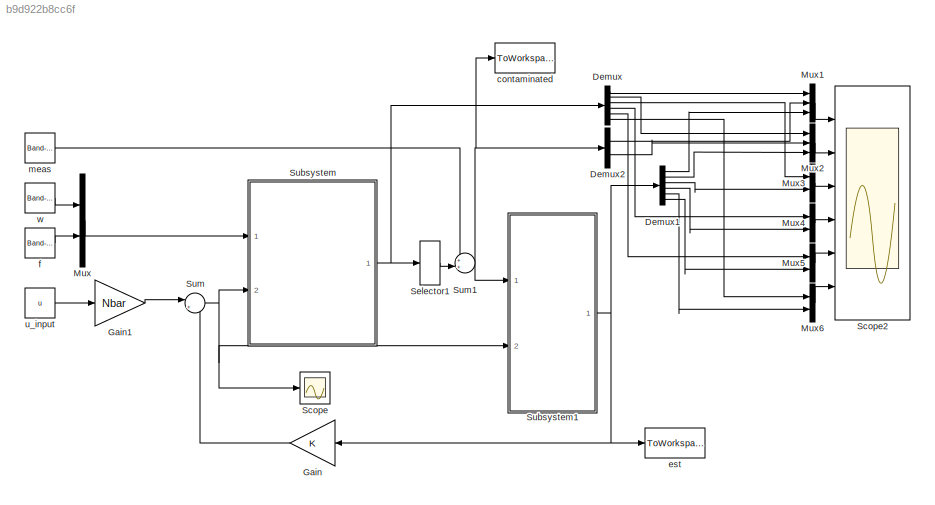
MODEL slx_b9d922b8cc6f
KIND model
CONFIG AbsTol = auto
CONFIG EnableMultiTasking = off
CONFIG FixedStep = Ts
CONFIG MaxStep = auto
CONFIG MinStep = auto
CONFIG RelTol = 1e-3
CONFIG SampleTimeConstraint = Unconstrained
CONFIG Solver = FixedStepAuto
CONFIG SolverName = FixedStepAuto
CONFIG StartTime = 0.0
CONFIG StopTime = duration
BLOCK [Demux] Demux
  DisplayOption = bar
  Outputs = 6
  Ports = [1, 6]
BLOCK [Demux] Demux1
  DisplayOption = bar
  Outputs = 6
  Ports = [1, 6]
BLOCK [Demux] Demux2
  DisplayOption = bar
  Outputs = 2
  Ports = [1, 2]
BLOCK [Gain] Gain
  Gain = K
  Multiplication = Matrix(K*u)
  OutDataTypeStr = Inherit: Inherit via internal rule
  ParamDataTypeStr = Inherit: Inherit via internal rule
  SaturateOnIntegerOverflow = off
BLOCK [Gain] Gain1
  Gain = Nbar
  Multiplication = Matrix(K*u)
  OutDataTypeStr = Inherit: Inherit via internal rule
  ParamDataTypeStr = Inherit: Inherit via internal rule
  SaturateOnIntegerOverflow = off
BLOCK [Mux] Mux
  DisplayOption = bar
  Inputs = 2
  Ports = [2, 1]
BLOCK [Mux] Mux1
  DisplayOption = bar
  Inputs = 3
  Ports = [3, 1]
BLOCK [Mux] Mux2
  DisplayOption = bar
  Inputs = 3
  Ports = [3, 1]
BLOCK [Mux] Mux3
  DisplayOption = bar
  Inputs = 2
  Ports = [2, 1]
BLOCK [Mux] Mux4
  DisplayOption = bar
  Inputs = 2
  Ports = [2, 1]
BLOCK [Mux] Mux5
  DisplayOption = bar
  Inputs = 2
  Ports = [2, 1]
BLOCK [Mux] Mux6
  DisplayOption = bar
  Inputs = 2
  Ports = [2, 1]
BLOCK [Scope] Scope
  NumInputPorts = 1
  Ports = [1]
  ScopeSpecificationString = Simulink.scopes.TimeScopeBlockCfg('CurrentConfiguration', extmgr.ConfigurationSet(extmgr.Configuration('Core','General UI',true),extmgr.Configuration('Core','Source UI',true),extmgr.Configuration('Sources','WiredSimulink',true),extmgr.Configuration('Visuals','Time Domain',true,'SerializedDisplays',{struct('MinYLimReal','-55.42938','MaxYLimReal','51.39931','YLabelReal','','MinYLimMag','0.00000','Ma...<+1329ch>
BLOCK [Scope] Scope2
  NumInputPorts = 6
  Ports = [6]
  ScopeSpecificationString = Simulink.scopes.TimeScopeBlockCfg('CurrentConfiguration', extmgr.ConfigurationSet(extmgr.Configuration('Core','General UI',true),extmgr.Configuration('Core','Source UI',true),extmgr.Configuration('Sources','WiredSimulink',true,'DataLoggingVariableName','ScopeData1'),extmgr.Configuration('Visuals','Time Domain',true,'SerializedDisplays',{struct('MinYLimReal','-4.19557','MaxYLimReal','20.83459','YLa...<+4951ch>
BLOCK [Selector] Selector1
  IndexOptions = Index vector (dialog)
  Indices = [1 2]
  InputPortWidth = 6
  OutputSizes = 1
  Ports = [1, 1]
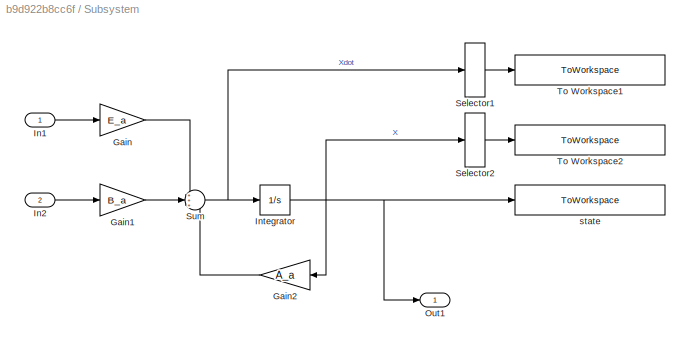
BLOCK [SubSystem] Subsystem
  Ports = [2, 1]
  RequestExecContextInheritance = off
  Variant = off
BLOCK [Gain] Subsystem/Gain
  Gain = E_a
  Multiplication = Matrix(K*u)
  OutDataTypeStr = Inherit: Inherit via internal rule
  ParamDataTypeStr = Inherit: Inherit via internal rule
  SaturateOnIntegerOverflow = off
BLOCK [Gain] Subsystem/Gain1
  Gain = B_a
  Multiplication = Matrix(K*u)
  OutDataTypeStr = Inherit: Inherit via internal rule
  ParamDataTypeStr = Inherit: Inherit via internal rule
  SaturateOnIntegerOverflow = off
BLOCK [Gain] Subsystem/Gain2
  Gain = A_a
  Multiplication = Matrix(K*u)
  OutDataTypeStr = Inherit: Inherit via internal rule
  ParamDataTypeStr = Inherit: Inherit via internal rule
  SaturateOnIntegerOverflow = off
BLOCK [Inport] Subsystem/In1
  IconDisplay = Port number
BLOCK [Inport] Subsystem/In2
  IconDisplay = Port number
  Port = 2
BLOCK [Integrator] Subsystem/Integrator
  InitialCondition = X_0
  Ports = [1, 1]
BLOCK [Outport] Subsystem/Out1
  IconDisplay = Port number
BLOCK [Selector] Subsystem/Selector1
  IndexOptions = Index vector (dialog)
  Indices = [3]
  InputPortWidth = 6
  OutputSizes = 1
  Ports = [1, 1]
BLOCK [Selector] Subsystem/Selector2
  IndexOptions = Index vector (dialog)
  Indices = [3]
  InputPortWidth = 6
  OutputSizes = 1
  Ports = [1, 1]
BLOCK [Sum] Subsystem/Sum
  IconShape = round
  InputSameDT = off
  Inputs = +++
  OutDataTypeStr = Inherit: Inherit via internal rule
  Ports = [3, 1]
  SaturateOnIntegerOverflow = off
BLOCK [ToWorkspace] Subsystem/To Workspace1
  FixptAsFi = on
  MaxDataPoints = inf
  Ports = [1]
  SampleTime = -1
  Save2DSignal = 3-D array (concatenate along third dimension)
  SaveFormat = Structure With Time
  VariableName = linear_acceleration
BLOCK [ToWorkspace] Subsystem/To Workspace2
  FixptAsFi = on
  MaxDataPoints = inf
  Ports = [1]
  SampleTime = -1
  Save2DSignal = 3-D array (concatenate along third dimension)
  SaveFormat = Structure With Time
  VariableName = linear_velocity
BLOCK [ToWorkspace] Subsystem/state
  MaxDataPoints = inf
  Ports = [1]
  SampleTime = Ts
  SaveFormat = Structure With Time
  VariableName = state_data
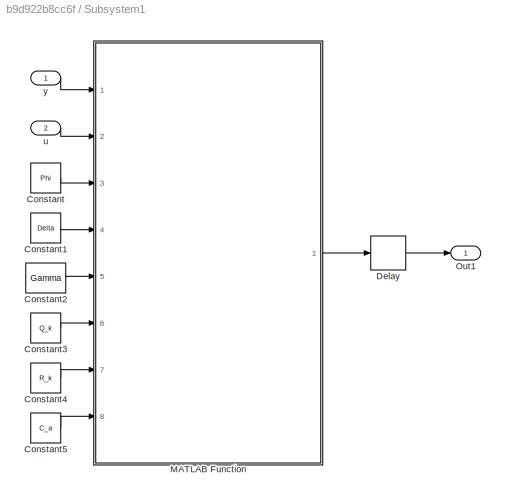
BLOCK [SubSystem] Subsystem1
  Ports = [2, 1]
  RequestExecContextInheritance = off
  Variant = off
BLOCK [Constant] Subsystem1/Constant
  Value = Phi
BLOCK [Constant] Subsystem1/Constant1
  Value = Delta
BLOCK [Constant] Subsystem1/Constant2
  Value = Gamma
BLOCK [Constant] Subsystem1/Constant3
  Value = Q_k
BLOCK [Constant] Subsystem1/Constant4
  Value = R_k
BLOCK [Constant] Subsystem1/Constant5
  Value = C_a
BLOCK [Delay] Subsystem1/Delay
  DelayLength = 1
  InitialCondition = 0
  InputPortMap = u0
  Ports = [1, 1]
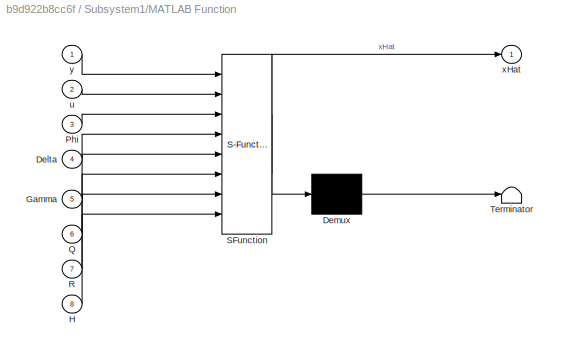
BLOCK [SubSystem] Subsystem1/MATLAB Function
  ErrorFcn = Stateflow.Translate.translate
  PermitHierarchicalResolution = ExplicitOnly
  Ports = [8, 1]
  RequestExecContextInheritance = off
  SFBlockType = MATLAB Function
  TreatAsAtomicUnit = on
  Variant = off
BLOCK [Demux] Subsystem1/MATLAB Function/ Demux 
  Outputs = 1
  Ports = [1, 1]
BLOCK [S-Function] Subsystem1/MATLAB Function/ SFunction 
  EnableBusSupport = on
  FunctionName = sf_sfun
  PortCounts = [8 2]
  Ports = [8, 2]
  SFcnIsStateOwnerBlock = off
  SFunctionDeploymentMode = off
  Tag = Stateflow S-Function pdl_linear_hw3n 2
BLOCK [Terminator] Subsystem1/MATLAB Function/ Terminator 
BLOCK [Inport] Subsystem1/MATLAB Function/Delta
  IconDisplay = Port number
  Port = 4
BLOCK [Inport] Subsystem1/MATLAB Function/Gamma
  IconDisplay = Port number
  Port = 5
BLOCK [Inport] Subsystem1/MATLAB Function/H
  IconDisplay = Port number
  Port = 8
BLOCK [Inport] Subsystem1/MATLAB Function/Phi
  IconDisplay = Port number
  Port = 3
BLOCK [Inport] Subsystem1/MATLAB Function/Q
  IconDisplay = Port number
  Port = 6
BLOCK [Inport] Subsystem1/MATLAB Function/R
  IconDisplay = Port number
  Port = 7
BLOCK [Inport] Subsystem1/MATLAB Function/u
  IconDisplay = Port number
  Port = 2
BLOCK [Outport] Subsystem1/MATLAB Function/xHat
  IconDisplay = Port number
BLOCK [Inport] Subsystem1/MATLAB Function/y
  IconDisplay = Port number
BLOCK [Outport] Subsystem1/Out1
  IconDisplay = Port number
BLOCK [Inport] Subsystem1/u
  IconDisplay = Port number
  Port = 2
BLOCK [Inport] Subsystem1/y
  IconDisplay = Port number
BLOCK [Sum] Sum
  IconShape = round
  InputSameDT = off
  Inputs = |+-
  OutDataTypeStr = Inherit: Inherit via internal rule
  Ports = [2, 1]
  SaturateOnIntegerOverflow = off
BLOCK [Sum] Sum1
  IconShape = round
  InputSameDT = off
  Inputs = ++|
  OutDataTypeStr = Inherit: Inherit via internal rule
  Ports = [2, 1]
  SaturateOnIntegerOverflow = off
BLOCK [ToWorkspace] contaminated
  MaxDataPoints = inf
  Ports = [1]
  SampleTime = Ts
  SaveFormat = Structure With Time
  VariableName = contmn
BLOCK [ToWorkspace] est
  MaxDataPoints = inf
  Ports = [1]
  SampleTime = Ts
  SaveFormat = Structure With Time
  VariableName = est
BLOCK [Reference] f  REF=simulink/Sources/Band-Limited
White Noise
  Ports = [0, 1]
  SourceBlock = simulink/Sources/Band-Limited\nWhite Noise
  SourceProductBaseCode = SL
  SourceProductName = Simulink
  SourceType = Band-Limited White Noise.
BLOCK [Reference] meas  REF=simulink/Sources/Band-Limited
White Noise
  Ports = [0, 1]
  SourceBlock = simulink/Sources/Band-Limited\nWhite Noise
  SourceProductBaseCode = SL
  SourceProductName = Simulink
  SourceType = Band-Limited White Noise.
BLOCK [Constant] u_input
  Value = u
BLOCK [Reference] w  REF=simulink/Sources/Band-Limited
White Noise
  Ports = [0, 1]
  SourceBlock = simulink/Sources/Band-Limited\nWhite Noise
  SourceProductBaseCode = SL
  SourceProductName = Simulink
  SourceType = Band-Limited White Noise.
LINE Demux1:1 -> Mux1:3
LINE Demux1:2 -> Mux2:3
LINE Demux1:3 -> Mux3:2
LINE Demux1:4 -> Mux4:2
LINE Demux1:5 -> Mux6:2
LINE Demux1:6 -> Mux5:2
LINE Demux2:1 -> Mux1:2
LINE Demux2:2 -> Mux2:2
LINE Demux:1 -> Mux1:1
LINE Demux:2 -> Mux2:1
LINE Demux:3 -> Mux3:1
LINE Demux:4 -> Mux4:1
LINE Demux:5 -> Mux5:1
LINE Demux:6 -> Mux6:1
LINE Gain1:1 -> Sum:1
LINE Gain:1 -> Sum:2
LINE Mux1:1 -> Scope2:1
LINE Mux2:1 -> Scope2:2
LINE Mux3:1 -> Scope2:3
LINE Mux4:1 -> Scope2:4
LINE Mux5:1 -> Scope2:5
LINE Mux6:1 -> Scope2:6
LINE Mux:1 -> Subsystem:1
LINE Selector1:1 -> Sum1:2
LINE Subsystem/Gain1:1 -> Subsystem/Sum:2
LINE Subsystem/Gain2:1 -> Subsystem/Sum:3
LINE Subsystem/Gain:1 -> Subsystem/Sum:1
LINE Subsystem/In1:1 -> Subsystem/Gain:1
LINE Subsystem/In2:1 -> Subsystem/Gain1:1
NET Subsystem/Integrator:1 -> Subsystem/Gain2:1, Subsystem/Out1:1, Subsystem/Selector2:1, Subsystem/state:1
LINE Subsystem/Selector1:1 -> Subsystem/To Workspace1:1
LINE Subsystem/Selector2:1 -> Subsystem/To Workspace2:1
NET Subsystem/Sum:1 -> Subsystem/Integrator:1, Subsystem/Selector1:1
LINE Subsystem1/Constant1:1 -> Subsystem1/MATLAB Function:4
LINE Subsystem1/Constant2:1 -> Subsystem1/MATLAB Function:5
LINE Subsystem1/Constant3:1 -> Subsystem1/MATLAB Function:6
LINE Subsystem1/Constant4:1 -> Subsystem1/MATLAB Function:7
LINE Subsystem1/Constant5:1 -> Subsystem1/MATLAB Function:8
LINE Subsystem1/Constant:1 -> Subsystem1/MATLAB Function:3
LINE Subsystem1/Delay:1 -> Subsystem1/Out1:1
LINE Subsystem1/MATLAB Function:1 -> Subsystem1/Delay:1
LINE Subsystem1/u:1 -> Subsystem1/MATLAB Function:2
LINE Subsystem1/y:1 -> Subsystem1/MATLAB Function:1
NET Subsystem1:1 -> Demux1:1, Gain:1, est:1
NET Subsystem:1 -> Demux:1, Selector1:1
NET Sum1:1 -> Demux2:1, Subsystem1:1, contaminated:1
NET Sum:1 -> Scope:1, Subsystem1:2, Subsystem:2
LINE f:1 -> Mux:2
LINE meas:1 -> Sum1:1
LINE u_input:1 -> Gain1:1
LINE w:1 -> Mux:1
note: NET lines group one-source signal fan-out (src -> all destinations, sorted); 1:1 wires keep LINE
CHART Subsystem1/MATLAB Function states=1 transitions=1
  STATE_LABEL 'eML_blk_kernel()'
  STATE_LABEL "SCRIPT:\nfunction xHat = fcn(y,u,Phi,Delta,Gamma,Q,R,H)\n\npersistent Pbar xbar\n\n% init. Pbar xbar\nif isempty(Pbar)\n    Pbar = 1e-6*eye(6);\nend\n\nif isempty(xbar)\n    xbar = zeros(6,1);\nend\n\n% 1. Kalman gain\nK = Pbar*H'*[H*Pbar*H'+R]^(-1);\n\n% 2. state est. update\nxHat = xbar + K*[y-H*xbar];\n\n% 3. error covariance update\nPhat = [eye(6)-K*H]*Pbar*[eye(6)-K*H]'+K*R*K';\n\n% 4. state est. propagation\nxbar =...<+91ch>"
